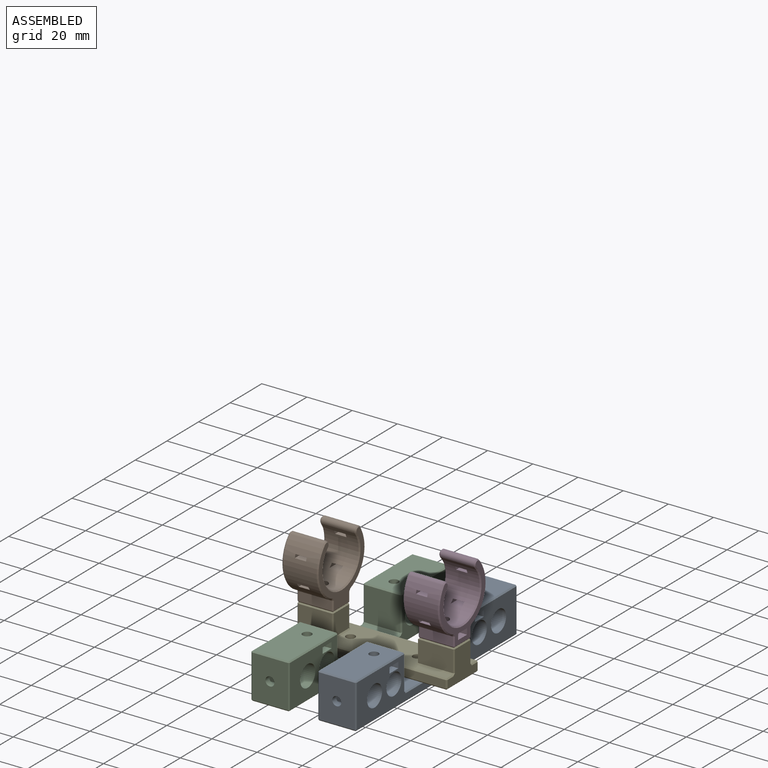
[diagram: assembled view]
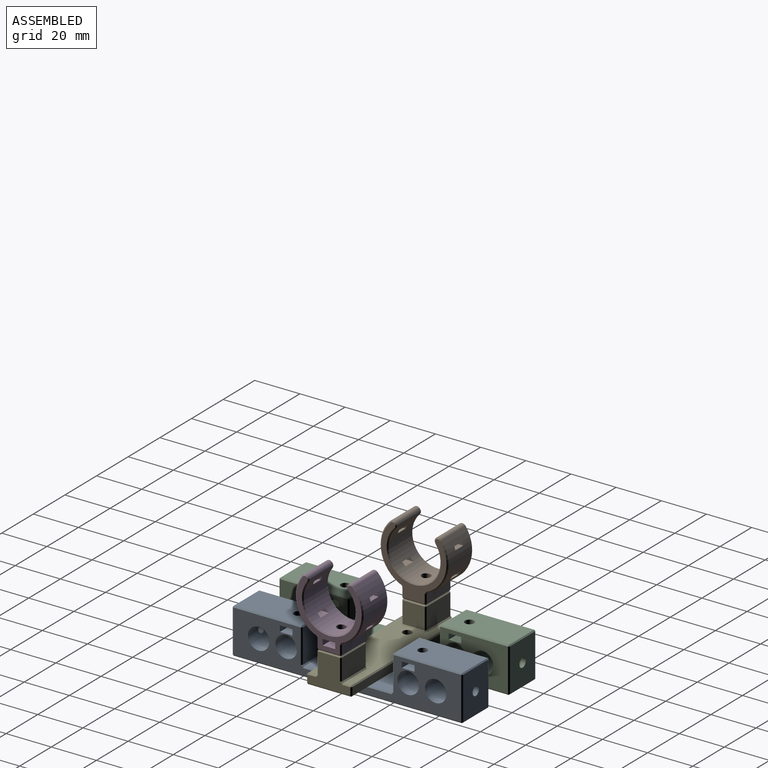
[diagram: assembled view, second angle]
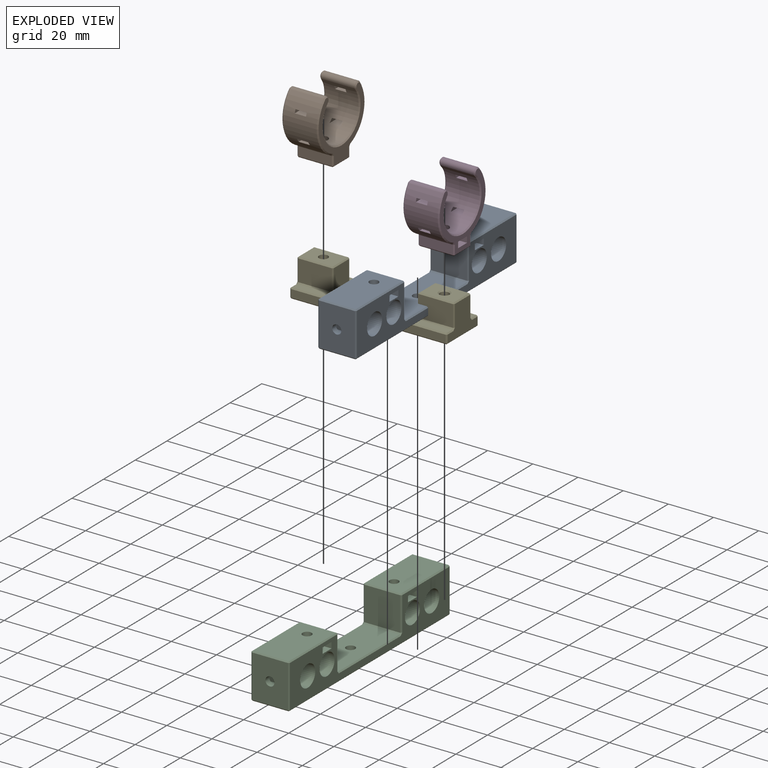
[diagram: exploded view]
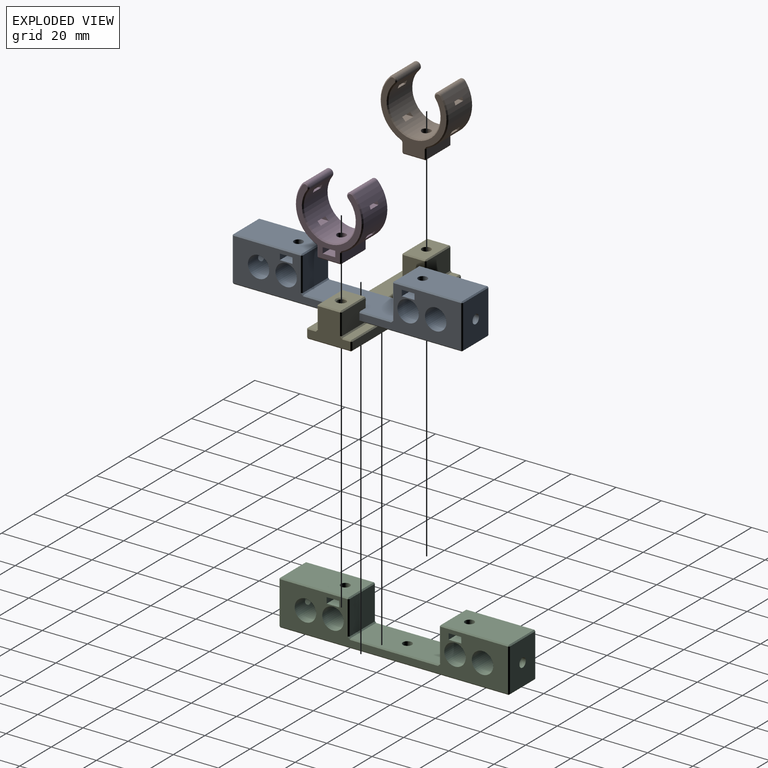
[diagram: exploded view, second angle]
ASSEMBLY  parts=5 mates=4
PART A: 82 faces, bbox 17x102x20 mm
  f0: cylinder r=4.75mm len=17mm, axis (1,0,0), area 494.4mm2, adj f1,f2,f81
  f1: plane 101x19mm, normal (-1,0,0), area 922.2mm2, adj f0,f4,f13,f16,f17,f18,f19,f23
  f2: plane 101x19mm, normal (1,0,0), area 951.4mm2, adj f0,f4,f13,f28,f36,f41,f46,f51
  f3: cylinder r=2mm len=4mm, axis (0,-1,0), area 31.4mm2, adj f22,f26
  f4: cylinder r=4.75mm len=17mm, axis (-1,0,0), area 494.5mm2, adj f1,f2,f21
  f5: cylinder r=2mm len=4mm, axis (0,1,0), area 27.2mm2, adj f13,f17
  f6: plane 39x16mm, normal (0,0,-1), area 611.4mm2, adj f7,f55,f56,f64,f65
  f7: cylinder r=2mm len=4mm, axis (0,0,-1), area 44mm2, adj f6,f69
  f8: plane 101x16mm, normal (0,0,1), area 1596.4mm2, adj f32,f33,f41,f42,f69
  f9: plane 16x15mm, normal (0,-1,0), area 240mm2, adj f54,f63,f64,f68
  f10: plane 30x16mm, normal (0,0,-1), area 467.4mm2, adj f52,f53,f62,f63,f78
  f11: plane 16x15mm, normal (0,1,0), area 240mm2, adj f44,f45,f56,f57
  f12: plane 30x16mm, normal (0,0,-1), area 467.4mm2, adj f34,f35,f45,f46,f80
  f13: cylinder r=4.75mm len=17mm, axis (-1,0,0), area 494.5mm2, adj f1,f2,f5
  f14: plane 19x16mm, normal (0,1,0), area 291.4mm2, adj f15,f42,f43,f51,f52
  f15: cylinder r=2mm len=4mm, axis (0,1,0), area 31.4mm2, adj f14,f16
  f16: plane 15.5x5.6mm, normal (0,-1,0), area 74.2mm2, adj f1,f15,f18,f19,f20
  f17: plane 15.5x5.6mm, normal (0,1,0), area 74.2mm2, adj f1,f5,f18,f19,f20
  f18: plane 15.5x2.6mm, normal (0,0,-1), area 40.3mm2, adj f1,f16,f17,f20
  f19: plane 15.5x2.6mm, normal (0,0,1), area 40.3mm2, adj f1,f16,f17,f20
  f20: plane 5.6x2.6mm, normal (-1,0,0), area 14.6mm2, adj f16,f17,f18,f19
  f21: cylinder r=2mm len=4mm, axis (0,-1,0), area 27.2mm2, adj f4,f24
  f22: plane 19x16mm, normal (0,-1,0), area 291.4mm2, adj f3,f29,f32,f35,f36
  f23: plane 15.5x2.6mm, normal (0,0,-1), area 40.3mm2, adj f1,f24,f26,f27
  f24: plane 15.5x5.6mm, normal (0,-1,0), area 74.2mm2, adj f1,f21,f23,f25,f27
  f25: plane 15.5x2.6mm, normal (0,0,1), area 40.3mm2, adj f1,f24,f26,f27
  f26: plane 15.5x5.6mm, normal (0,1,0), area 74.2mm2, adj f1,f3,f23,f25,f27
  f27: plane 5.6x2.6mm, normal (-1,0,0), area 14.6mm2, adj f23,f24,f25,f26
  f28: cylinder r=4.75mm len=17mm, axis (1,0,0), area 494.4mm2, adj f1,f2,f79
  f29: plane 19x0.5mm, normal (-0.71,-0.71,0), area 13.4mm2, adj f1,f22,f30,f31
  f30: plane 0.5x0.5mm, normal (-0.58,-0.58,0.58), area 0.2mm2, adj f29,f32,f33
  f31: plane 0.5x0.5mm, normal (-0.58,-0.58,-0.58), area 0.2mm2, adj f29,f34,f35
  f32: plane 16x0.5mm, normal (0,-0.71,0.71), area 11.3mm2, adj f8,f22,f30,f37
  f33: plane 101x0.5mm, normal (-0.71,0,0.71), area 71.4mm2, adj f1,f8,f30,f38
  f34: plane 30x0.5mm, normal (-0.71,0,-0.71), area 21.2mm2, adj f1,f12,f31,f39
  f35: plane 16x0.5mm, normal (0,-0.71,-0.71), area 11.3mm2, adj f12,f22,f31,f40
  f36: plane 19x0.5mm, normal (0.71,-0.71,0), area 13.4mm2, adj f2,f22,f37,f40
  f37: plane 0.5x0.5mm, normal (0.58,-0.58,0.58), area 0.2mm2, adj f32,f36,f41
  f38: plane 0.5x0.5mm, normal (-0.58,0.58,0.58), area 0.2mm2, adj f33,f42,f43
  f39: plane 0.5x0.5mm, normal (-0.58,0.58,-0.58), area 0.2mm2, adj f34,f44,f45
  f40: plane 0.5x0.5mm, normal (0.58,-0.58,-0.58), area 0.2mm2, adj f35,f36,f46
  f41: plane 101x0.5mm, normal (0.71,0,0.71), area 71.4mm2, adj f2,f8,f37,f47
  f42: plane 16x0.5mm, normal (0,0.71,0.71), area 11.3mm2, adj f8,f14,f38,f47
  f43: plane 19x0.5mm, normal (-0.71,0.71,0), area 13.4mm2, adj f1,f14,f38,f48
  f44: plane 15x0.5mm, normal (-0.71,0.71,0), area 10.6mm2, adj f1,f11,f39,f49
  f45: plane 16x0.5mm, normal (0,0.71,-0.71), area 11.3mm2, adj f11,f12,f39,f50
  f46: plane 30x0.5mm, normal (0.71,0,-0.71), area 21.2mm2, adj f2,f12,f40,f50
  f47: plane 0.5x0.5mm, normal (0.58,0.58,0.58), area 0.2mm2, adj f41,f42,f51
  f48: plane 0.5x0.5mm, normal (-0.58,0.58,-0.58), area 0.2mm2, adj f43,f52,f53
  f49: plane 1x1mm, normal (-0.58,0.58,-0.58), area 0.6mm2, adj f1,f44,f55,f56
  f50: plane 0.5x0.5mm, normal (0.58,0.58,-0.58), area 0.2mm2, adj f45,f46,f57
  f51: plane 19x0.5mm, normal (0.71,0.71,0), area 13.4mm2, adj f2,f14,f47,f58
  f52: plane 16x0.5mm, normal (0,0.71,-0.71), area 11.3mm2, adj f10,f14,f48,f58
  f53: plane 30x0.5mm, normal (-0.71,0,-0.71), area 21.2mm2, adj f1,f10,f48,f59
  f54: plane 15x0.5mm, normal (-0.71,-0.71,0), area 10.6mm2, adj f1,f9,f59,f60
  f55: plane 39x0.5mm, normal (-0.71,0,-0.71), area 27.6mm2, adj f1,f6,f49,f60
  f56: plane 16x0.5mm, normal (0,0.71,-0.71), area 11.3mm2, adj f6,f11,f49,f61
  f57: plane 15x0.5mm, normal (0.71,0.71,0), area 10.6mm2, adj f2,f11,f50,f61
  f58: plane 0.5x0.5mm, normal (0.58,0.58,-0.58), area 0.2mm2, adj f51,f52,f62
  f59: plane 0.5x0.5mm, normal (-0.58,-0.58,-0.58), area 0.2mm2, adj f53,f54,f63
  f60: plane 1x1mm, normal (-0.58,-0.58,-0.58), area 0.6mm2, adj f1,f54,f55,f64
  f61: plane 1x1mm, normal (0.58,0.58,-0.58), area 0.6mm2, adj f2,f56,f57,f65
  f62: plane 30x0.5mm, normal (0.71,0,-0.71), area 21.2mm2, adj f2,f10,f58,f66
  f63: plane 16x0.5mm, normal (0,-0.71,-0.71), area 11.3mm2, adj f9,f10,f59,f66
  f64: plane 16x0.5mm, normal (0,-0.71,-0.71), area 11.3mm2, adj f6,f9,f60,f67
  f65: plane 39x0.5mm, normal (0.71,0,-0.71), area 27.6mm2, adj f2,f6,f61,f67
  f66: plane 0.5x0.5mm, normal (0.58,-0.58,-0.58), area 0.2mm2, adj f62,f63,f68
  f67: plane 1x1mm, normal (0.58,-0.58,-0.58), area 0.6mm2, adj f2,f64,f65,f68
  f68: plane 15x0.5mm, normal (0.71,-0.71,0), area 10.6mm2, adj f2,f9,f66,f67
  f69: cone r=2mm half-angle=45deg, axis (0,0,1), area 10mm2, adj f7,f8
  f70: plane 17x5.6mm, normal (0,0,-1), area 82.6mm2, adj f1,f2,f71,f73,f79
  f71: plane 17x2.6mm, normal (0,1,0), area 44.2mm2, adj f1,f2,f70,f72
  f72: plane 17x5.6mm, normal (0,0,1), area 82.6mm2, adj f1,f2,f71,f73,f78
  f73: plane 17x2.6mm, normal (0,-1,0), area 44.2mm2, adj f1,f2,f70,f72
  f74: plane 17x5.6mm, normal (0,0,-1), area 82.6mm2, adj f1,f2,f75,f77,f81
  f75: plane 17x2.6mm, normal (0,1,0), area 44.2mm2, adj f1,f2,f74,f76
  f76: plane 17x5.6mm, normal (0,0,1), area 82.6mm2, adj f1,f2,f75,f77,f80
  f77: plane 17x2.6mm, normal (0,-1,0), area 44.2mm2, adj f1,f2,f74,f76
  f78: cylinder r=2mm len=4mm, axis (0,0,-1), area 27mm2, adj f10,f72
  f79: cylinder r=2mm len=4mm, axis (0,0,-1), area 9.4mm2, adj f28,f70
  f80: cylinder r=2mm len=4mm, axis (0,0,-1), area 27mm2, adj f12,f76
  f81: cylinder r=2mm len=4mm, axis (0,0,-1), area 9.4mm2, adj f0,f74
PART B: 61 faces, bbox 30x16x30 mm
  f0: plane 29.04x29mm, normal (0,-1,0), area 183.4mm2, adj f26,f27,f28,f29,f33,f34,f36,f37
  f1: cylinder r=15mm len=24.39mm, axis (0,1,0), area 423.8mm2, adj f2,f15,f16,f17,f18,f19,f20,f21
  f2: cylinder r=1.75mm len=15mm, axis (0,1,0), area 82.5mm2, adj f1,f3,f45,f59
  f3: cylinder r=11.5mm len=23mm, axis (0,1,0), area 735.4mm2, adj f2,f4,f7,f8,f9,f10,f11,f12
  f4: cylinder r=1.75mm len=15mm, axis (0,1,0), area 82.5mm2, adj f3,f5,f36,f54
  f5: cylinder r=15mm len=22.76mm, axis (0,1,0), area 391.6mm2, adj f4,f7,f8,f9,f10,f11,f12,f13
  f6: plane 29.04x29mm, normal (0,1,0), area 197.9mm2, adj f42,f46,f47,f51,f54,f55,f57,f58
  f7: plane 4.24x1.5mm, normal (0,-1,0), area 5.6mm2, adj f3,f5,f8,f10
  f8: plane 5x3.79mm, normal (0,0,1), area 19mm2, adj f3,f5,f7,f9
  f9: plane 4.24x1.5mm, normal (0,1,0), area 5.6mm2, adj f3,f5,f8,f10
  f10: plane 5x3.64mm, normal (0,0,-1), area 18.2mm2, adj f3,f5,f7,f9
  f11: plane 5.67x1.5mm, normal (0,-1,0), area 6.7mm2, adj f3,f5,f12,f14
  f12: plane 5x4.2mm, normal (0,0,1), area 21mm2, adj f3,f5,f11,f13
  f13: plane 5.67x1.5mm, normal (0,1,0), area 6.7mm2, adj f3,f5,f12,f14
  f14: plane 5x4.72mm, normal (0,0,-1), area 23.6mm2, adj f3,f5,f11,f13
  f15: plane 5x3.64mm, normal (0,0,-1), area 18.2mm2, adj f1,f3,f16,f18
  f16: plane 4.24x1.5mm, normal (0,1,0), area 5.6mm2, adj f1,f3,f15,f17
  f17: plane 5x3.79mm, normal (0,0,1), area 19mm2, adj f1,f3,f16,f18
  f18: plane 4.24x1.5mm, normal (0,-1,0), area 5.6mm2, adj f1,f3,f15,f17
  f19: plane 5x4.72mm, normal (0,0,-1), area 23.6mm2, adj f1,f3,f20,f22
  f20: plane 5.67x1.5mm, normal (0,1,0), area 6.7mm2, adj f1,f3,f19,f21
  f21: plane 5x4.2mm, normal (0,0,1), area 21mm2, adj f1,f3,f20,f22
  f22: plane 5.67x1.5mm, normal (0,-1,0), area 6.7mm2, adj f1,f3,f19,f21
  f23: plane 15x4.16mm, normal (-1,0,0), area 62.4mm2, adj f48,f49,f55,f56
  f24: plane 15x4.16mm, normal (1,0,0), area 62.4mm2, adj f34,f38,f41,f42
  f25: plane 15x9.77mm, normal (0,0,1), area 134mm2, adj f32,f38,f39,f47,f48
  f26: plane 11.3x5.6mm, normal (0,0,-1), area 50.7mm2, adj f0,f27,f29,f30,f32
  f27: plane 11.3x2.6mm, normal (1,0,0), area 29.4mm2, adj f0,f26,f28,f30
  f28: plane 11.3x5.6mm, normal (0,0,1), area 50.7mm2, adj f0,f27,f29,f30,f31
  f29: plane 11.3x2.6mm, normal (-1,0,0), area 29.4mm2, adj f0,f26,f28,f30
  f30: plane 5.6x2.6mm, normal (0,-1,0), area 14.6mm2, adj f26,f27,f28,f29
  f31: cylinder r=2mm len=4mm, axis (0,0,1), area 31.9mm2, adj f3,f28
  f32: cylinder r=2mm len=4mm, axis (0,0,1), area 30.8mm2, adj f25,f26
  f33: cone r=14.5mm half-angle=45deg, axis (0,1,0), area 18.9mm2, adj f0,f5,f36,f37
  f34: plane 4.16x0.5mm, normal (0.71,-0.71,0), area 2.9mm2, adj f0,f24,f35,f37
  f35: plane 0.5x0.5mm, normal (0.58,-0.58,0.58), area 0.2mm2, adj f34,f38,f39
  f36: cone r=1.25mm half-angle=45deg, axis (0,1,0), area 3.3mm2, adj f0,f4,f33,f40
  f37: plane 0.93x0.81mm, normal (0.64,-0.64,0.43), area 0.5mm2, adj f0,f33,f34,f41
  f38: plane 15x0.5mm, normal (0.71,0,0.71), area 10.6mm2, adj f24,f25,f35,f43
  f39: plane 9.77x0.5mm, normal (0,-0.71,0.71), area 6.9mm2, adj f0,f25,f35,f44
  f40: cone r=11.5mm half-angle=45deg, axis (0,-1,0), area 37.8mm2, adj f0,f3,f36,f45
  f41: plane 15x0.46mm, normal (0.83,0,0.56), area 8.4mm2, adj f5,f24,f37,f46
  f42: plane 4.16x0.5mm, normal (0.71,0.71,0), area 2.9mm2, adj f6,f24,f43,f46
  f43: plane 0.5x0.5mm, normal (0.58,0.58,0.58), area 0.2mm2, adj f38,f42,f47
  f44: plane 0.5x0.5mm, normal (-0.58,-0.58,0.58), area 0.2mm2, adj f39,f48,f49
  f45: cone r=1.25mm half-angle=45deg, axis (0,1,0), area 3.3mm2, adj f0,f2,f40,f50
  f46: plane 0.93x0.81mm, normal (0.64,0.64,0.43), area 0.5mm2, adj f6,f41,f42,f51
  f47: plane 9.77x0.5mm, normal (0,0.71,0.71), area 6.9mm2, adj f6,f25,f43,f52
  f48: plane 15x0.5mm, normal (-0.71,0,0.71), area 10.6mm2, adj f23,f25,f44,f52
  f49: plane 4.16x0.5mm, normal (-0.71,-0.71,0), area 2.9mm2, adj f0,f23,f44,f53
  f50: cone r=14.5mm half-angle=45deg, axis (0,1,0), area 20.4mm2, adj f0,f1,f45,f53
  f51: cone r=15mm half-angle=45deg, axis (0,-1,0), area 18.9mm2, adj f5,f6,f46,f54
  f52: plane 0.5x0.5mm, normal (-0.58,0.58,0.58), area 0.2mm2, adj f47,f48,f55
  f53: plane 0.93x0.81mm, normal (-0.64,-0.64,0.43), area 0.5mm2, adj f0,f49,f50,f56
  f54: cone r=1.75mm half-angle=45deg, axis (0,-1,0), area 3.3mm2, adj f4,f6,f51,f57
  f55: plane 4.16x0.5mm, normal (-0.71,0.71,0), area 2.9mm2, adj f6,f23,f52,f58
  f56: plane 15x0.46mm, normal (-0.83,0,0.56), area 8.4mm2, adj f1,f23,f53,f58
  f57: cone r=12mm half-angle=45deg, axis (0,1,0), area 37.8mm2, adj f3,f6,f54,f59
  f58: plane 0.93x0.81mm, normal (-0.64,0.64,0.43), area 0.5mm2, adj f6,f55,f56,f60
  f59: cone r=1.75mm half-angle=45deg, axis (0,-1,0), area 3.3mm2, adj f2,f6,f57,f60
  f60: cone r=15mm half-angle=45deg, axis (0,-1,0), area 20.4mm2, adj f1,f6,f58,f59
PART C: same geometry as A
PART D: same geometry as B
PART E: 80 faces, bbox 69.6x20x15 mm
  f0: plane 68.6x19mm, normal (0,0,1), area 903.1mm2, adj f20,f24,f25,f30,f33,f34,f43,f44
  f1: plane 68.6x19mm, normal (0,0,-1), area 1221.7mm2, adj f36,f37,f46,f47,f74,f76,f78,f79
  f2: plane 19x14mm, normal (-1,0,0), area 170.1mm2, adj f38,f43,f47,f48,f51,f59,f60,f68
  f3: plane 19x14mm, normal (1,0,0), area 170.1mm2, adj f18,f19,f24,f27,f28,f35,f36,f40
  f4: plane 68.6x3.5mm, normal (0,1,0), area 240.1mm2, adj f28,f33,f37,f38
  f5: cylinder r=2mm len=10.5mm, axis (0,0,-1), area 131.9mm2, adj f73,f75
  f6: plane 68.6x3.5mm, normal (0,-1,0), area 240.1mm2, adj f45,f46,f58,f59
  f7: cylinder r=2mm len=11mm, axis (0,0,-1), area 138.2mm2, adj f11,f77
  f8: plane 15x9.5mm, normal (0,1,0), area 142.5mm2, adj f48,f49,f56,f57
  f9: plane 15x9.5mm, normal (0,-1,0), area 142.5mm2, adj f61,f66,f69,f72
  f10: plane 9.77x9.5mm, normal (1,0,0), area 92.8mm2, adj f55,f56,f66,f67
  f11: plane 15x9.77mm, normal (0,0,1), area 134mm2, adj f7,f49,f55,f60,f61
  f12: plane 15x9.5mm, normal (0,1,0), area 142.5mm2, adj f17,f18,f20,f21
  f13: plane 10.27x9.5mm, normal (-1,0,0), area 97.6mm2, adj f14,f21,f22,f30
  f14: plane 15.5x9.5mm, normal (0,-1,0), area 147.2mm2, adj f13,f26,f34,f35
  f15: plane 15x9.77mm, normal (0,0,1), area 126.9mm2, adj f17,f22,f26,f27,f73
  f16: plane 0.5x0.5mm, normal (-0.58,0.58,0.58), area 0.2mm2, adj f17,f21,f22
  f17: plane 15x0.5mm, normal (0,0.71,0.71), area 10.6mm2, adj f12,f15,f16,f23
  f18: plane 9.5x0.5mm, normal (0.71,0.71,0), area 6.7mm2, adj f3,f12,f19,f23
  f19: plane 1x1mm, normal (0.58,0.58,0.58), area 0.6mm2, adj f3,f18,f20,f24
  f20: plane 15x0.5mm, normal (0,0.71,0.71), area 10.6mm2, adj f0,f12,f19,f25
  f21: plane 9.5x0.5mm, normal (-0.71,0.71,0), area 6.7mm2, adj f12,f13,f16,f25
  f22: plane 10.27x0.5mm, normal (-0.71,0,0.71), area 7.1mm2, adj f13,f15,f16,f26
  f23: plane 0.5x0.5mm, normal (0.58,0.58,0.58), area 0.2mm2, adj f17,f18,f27
  f24: plane 3.62x0.5mm, normal (0.71,0,0.71), area 2.6mm2, adj f0,f3,f19,f29
  f25: plane 1x1mm, normal (-0.58,0.58,0.58), area 0.6mm2, adj f0,f20,f21,f30
  f26: plane 15.5x0.5mm, normal (0,-0.71,0.71), area 10.8mm2, adj f14,f15,f22,f31
  f27: plane 9.77x0.5mm, normal (0.71,0,0.71), area 6.9mm2, adj f3,f15,f23,f31
  f28: plane 3.5x0.5mm, normal (0.71,0.71,0), area 2.5mm2, adj f3,f4,f29,f32
  f29: plane 0.5x0.5mm, normal (0.58,0.58,0.58), area 0.2mm2, adj f24,f28,f33
  f30: plane 10.77x0.5mm, normal (-0.71,0,0.71), area 7.4mm2, adj f0,f13,f25,f34
  f31: plane 0.5x0.5mm, normal (0.58,-0.58,0.58), area 0.2mm2, adj f26,f27,f35
  f32: plane 0.5x0.5mm, normal (0.58,0.58,-0.58), area 0.2mm2, adj f28,f36,f37
  f33: plane 68.6x0.5mm, normal (0,0.71,0.71), area 48.5mm2, adj f0,f4,f29,f39
  f34: plane 16x0.5mm, normal (0,-0.71,0.71), area 11.1mm2, adj f0,f14,f30,f40
  f35: plane 9.5x0.5mm, normal (0.71,-0.71,0), area 6.7mm2, adj f3,f14,f31,f40
  f36: plane 19x0.5mm, normal (0.71,0,-0.71), area 13.4mm2, adj f1,f3,f32,f41
  f37: plane 68.6x0.5mm, normal (0,0.71,-0.71), area 48.5mm2, adj f1,f4,f32,f42
  f38: plane 3.5x0.5mm, normal (-0.71,0.71,0), area 2.5mm2, adj f2,f4,f39,f42
  f39: plane 0.5x0.5mm, normal (-0.58,0.58,0.58), area 0.2mm2, adj f33,f38,f43
  f40: plane 1x1mm, normal (0.58,-0.58,0.58), area 0.6mm2, adj f3,f34,f35,f44
  f41: plane 0.5x0.5mm, normal (0.58,-0.58,-0.58), area 0.2mm2, adj f36,f45,f46
  f42: plane 0.5x0.5mm, normal (-0.58,0.58,-0.58), area 0.2mm2, adj f37,f38,f47
  f43: plane 3.62x0.5mm, normal (-0.71,0,0.71), area 2.6mm2, adj f0,f2,f39,f51
  f44: plane 3.62x0.5mm, normal (0.71,0,0.71), area 2.6mm2, adj f0,f3,f40,f52
  f45: plane 3.5x0.5mm, normal (0.71,-0.71,0), area 2.5mm2, adj f3,f6,f41,f52
  f46: plane 68.6x0.5mm, normal (0,-0.71,-0.71), area 48.5mm2, adj f1,f6,f41,f53
  f47: plane 19x0.5mm, normal (-0.71,0,-0.71), area 13.4mm2, adj f1,f2,f42,f53
  f48: plane 9.5x0.5mm, normal (-0.71,0.71,0), area 6.7mm2, adj f2,f8,f51,f54
  f49: plane 15x0.5mm, normal (0,0.71,0.71), area 10.6mm2, adj f8,f11,f50,f54
  f50: plane 0.5x0.5mm, normal (0.58,0.58,0.58), area 0.2mm2, adj f49,f55,f56
  f51: plane 1x1mm, normal (-0.58,0.58,0.58), area 0.6mm2, adj f2,f43,f48,f57
  f52: plane 0.5x0.5mm, normal (0.58,-0.58,0.58), area 0.2mm2, adj f44,f45,f58
  f53: plane 0.5x0.5mm, normal (-0.58,-0.58,-0.58), area 0.2mm2, adj f46,f47,f59
  f54: plane 0.5x0.5mm, normal (-0.58,0.58,0.58), area 0.2mm2, adj f48,f49,f60
  f55: plane 9.77x0.5mm, normal (0.71,0,0.71), area 6.9mm2, adj f10,f11,f50,f62
  f56: plane 9.5x0.5mm, normal (0.71,0.71,0), area 6.7mm2, adj f8,f10,f50,f63
  f57: plane 15x0.5mm, normal (0,0.71,0.71), area 10.6mm2, adj f0,f8,f51,f63
  f58: plane 68.6x0.5mm, normal (0,-0.71,0.71), area 48.5mm2, adj f0,f6,f52,f64
  f59: plane 3.5x0.5mm, normal (-0.71,-0.71,0), area 2.5mm2, adj f2,f6,f53,f64
  f60: plane 9.77x0.5mm, normal (-0.71,0,0.71), area 6.9mm2, adj f2,f11,f54,f65
  f61: plane 15x0.5mm, normal (0,-0.71,0.71), area 10.6mm2, adj f9,f11,f62,f65
  f62: plane 0.5x0.5mm, normal (0.58,-0.58,0.58), area 0.2mm2, adj f55,f61,f66
  f63: plane 1x1mm, normal (0.58,0.58,0.58), area 0.6mm2, adj f0,f56,f57,f67
  f64: plane 0.5x0.5mm, normal (-0.58,-0.58,0.58), area 0.2mm2, adj f58,f59,f68
  f65: plane 0.5x0.5mm, normal (-0.58,-0.58,0.58), area 0.2mm2, adj f60,f61,f69
  f66: plane 9.5x0.5mm, normal (0.71,-0.71,0), area 6.7mm2, adj f9,f10,f62,f70
  f67: plane 9.77x0.5mm, normal (0.71,0,0.71), area 6.9mm2, adj f0,f10,f63,f70
  f68: plane 3.62x0.5mm, normal (-0.71,0,0.71), area 2.6mm2, adj f0,f2,f64,f71
  f69: plane 9.5x0.5mm, normal (-0.71,-0.71,0), area 6.7mm2, adj f2,f9,f65,f71
  f70: plane 1x1mm, normal (0.58,-0.58,0.58), area 0.6mm2, adj f0,f66,f67,f72
  f71: plane 1x1mm, normal (-0.58,-0.58,0.58), area 0.6mm2, adj f2,f68,f69,f72
  f72: plane 15x0.5mm, normal (0,-0.71,0.71), area 10.6mm2, adj f0,f9,f70,f71
  f73: cone r=2.5mm half-angle=45deg, axis (0,0,1), area 10mm2, adj f5,f15
  f74: cylinder r=3mm len=6mm, axis (0,0,-1), area 75.4mm2, adj f1,f75
  f75: plane 6x6mm, normal (0,0,-1), area 15.7mm2, adj f5,f74
  f76: cylinder r=3mm len=6mm, axis (0,0,-1), area 75.4mm2, adj f1,f77
  f77: plane 6x6mm, normal (0,0,-1), area 15.7mm2, adj f7,f76
  f78: cylinder r=2mm len=4.5mm, axis (0,0,-1), area 56.5mm2, adj f0,f1
  f79: cylinder r=2mm len=4.5mm, axis (0,0,-1), area 56.5mm2, adj f0,f1
PLACE A rot(axis=(1,0,0),180deg) t=(53.36,62.29,-2.52)mm
PLACE B rot(axis=(0.71,0.71,0),180deg) t=(19.76,62.29,31.48)mm
PLACE C rot(axis=(1,0,0),180deg) t=(23.76,62.29,-2.52)mm
PLACE D rot(axis=(0.71,-0.71,0),180deg) t=(57.36,62.29,31.48)mm
PLACE E t=(38.56,62.29,-2.52)mm
MATE fastened A.f7 <-> E.f78  axis (0,0,1) through (53.36,62.29,-2.52)mm
MATE fastened D.f31 <-> E.f74  axis (0,0,-1) through (65.36,62.29,12.48)mm
MATE fastened C.f7 <-> E.f79  axis (0,0,1) through (23.76,62.29,-2.52)mm
MATE fastened B.f31 <-> E.f7  axis (0,0,-1) through (11.76,62.29,12.48)mm
